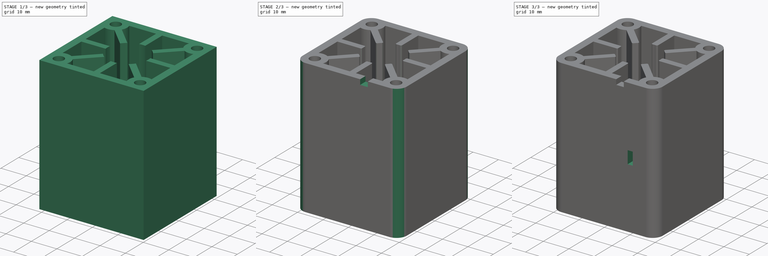
[diagram: build sequence overview — one tinted view per stage of 3, left to right]
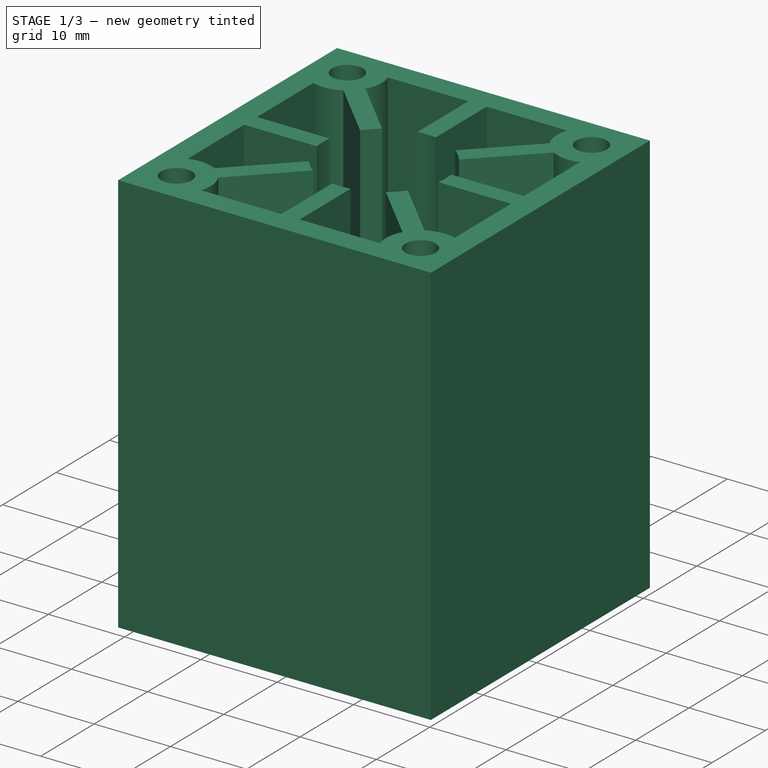
[diagram: stage 1 of 3 — iso view after this stage's code; geometry added in this stage tinted green]
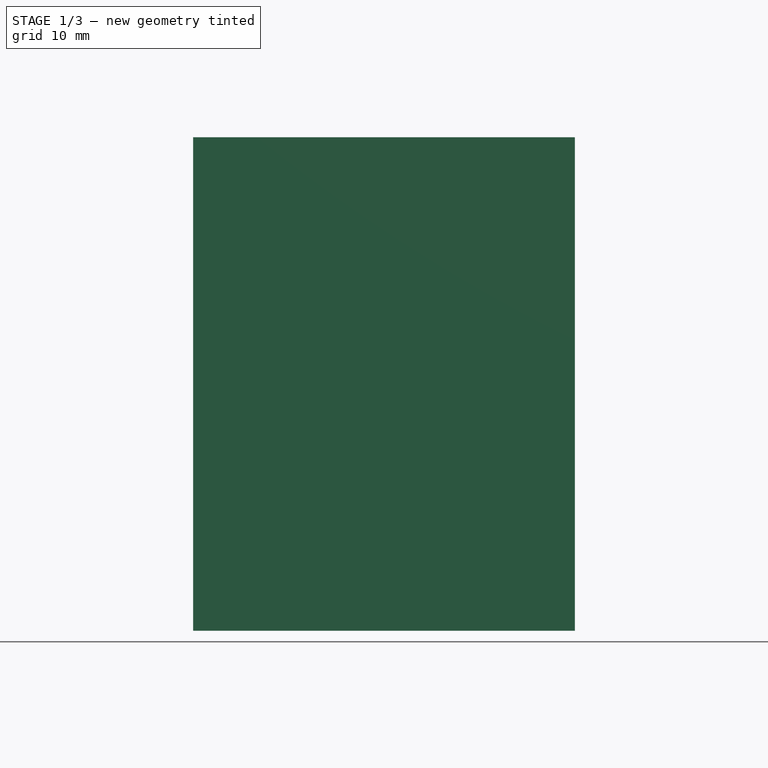
[diagram: stage 1 of 3 — front view after this stage's code; geometry added in this stage tinted green]
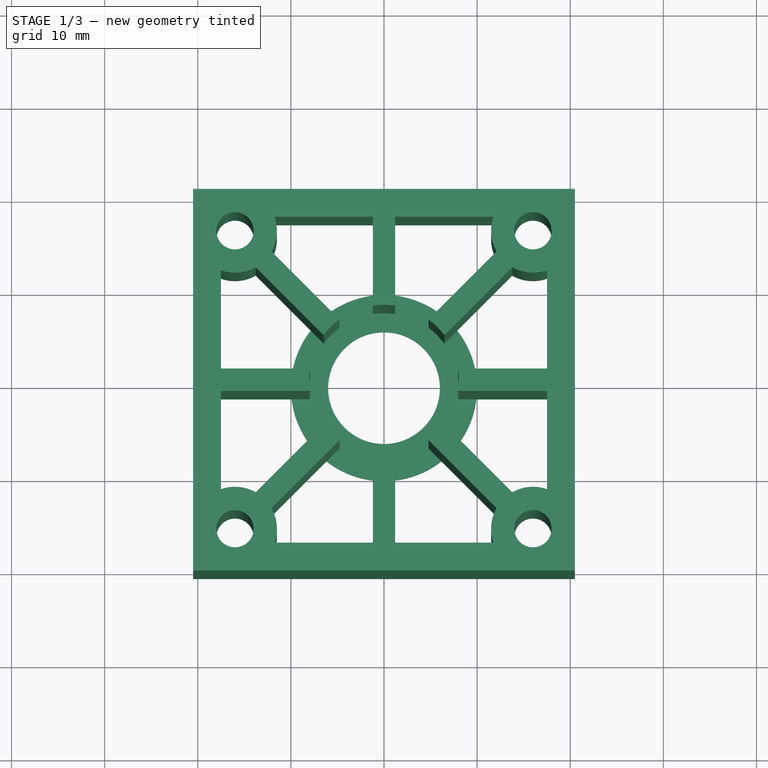
[diagram: stage 1 of 3 — top view after this stage's code; geometry added in this stage tinted green]
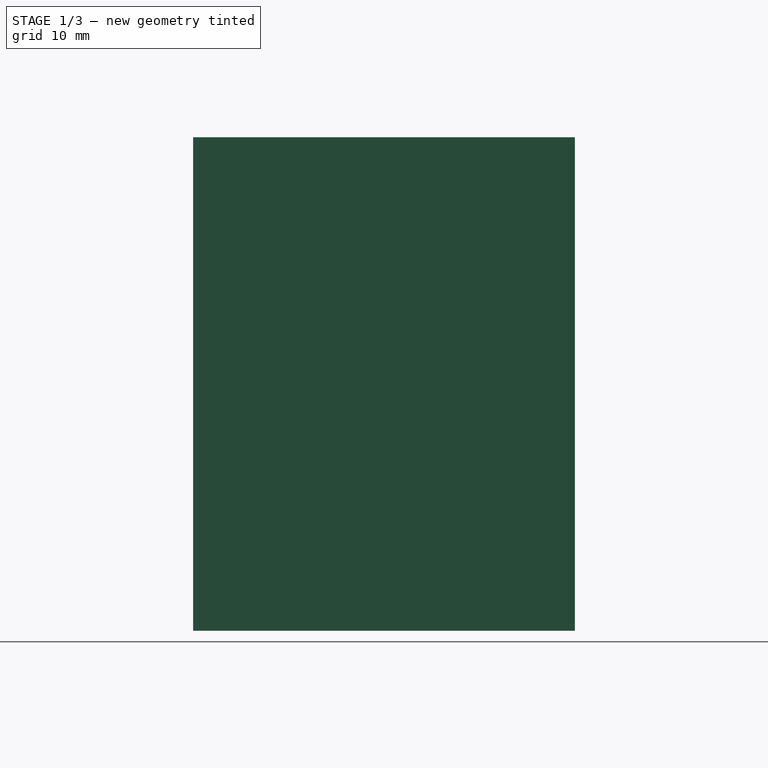
[diagram: stage 1 of 3 — right view after this stage's code; geometry added in this stage tinted green]
FCSTD DOCUMENT  (FreeCAD 0.16R6697 (Git))
Label: Halterung Laserdiode
License: All rights reserved
LicenseURL: http://de.wikipedia.org/wiki/Alle_Rechte_vorbehalten
objects: Drawing::FeatureViewPython×7, Sketcher::SketchObject×5, PartDesign::Pocket×3, PartDesign::Pad×2, PartDesign::Fillet×2, Drawing::FeatureViewPart×2, Drawing::FeaturePage×1
note: 17 computed .brp shape members not serialized (recipe doc carries the construction recipe); baked Part::Feature solids carry a one-line shape summary decoded from their .brp

FEATURE [Sketcher::SketchObject] Sketch
  sketch-geometry (56):
    g0: LineSegment StartX=-20.5 StartY=20.5 StartZ=0 EndX=20.5 EndY=20.5 EndZ=0
    g1: LineSegment StartX=20.5 StartY=20.5 StartZ=0 EndX=20.5 EndY=-20.5 EndZ=0
    g2: LineSegment StartX=20.5 StartY=-20.5 StartZ=0 EndX=-20.5 EndY=-20.5 EndZ=0
    g3: LineSegment StartX=-20.5 StartY=-20.5 StartZ=0 EndX=-20.5 EndY=20.5 EndZ=0
    g4: LineSegment [constr] StartX=-16 StartY=16 StartZ=0 EndX=16 EndY=16 EndZ=0
    g5: LineSegment [constr] StartX=16 StartY=16 StartZ=0 EndX=16 EndY=-16 EndZ=0
    g6: LineSegment [constr] StartX=16 StartY=-16 StartZ=0 EndX=-16 EndY=-16 EndZ=0
    g7: LineSegment [constr] StartX=-16 StartY=-16 StartZ=0 EndX=-16 EndY=16 EndZ=0
    g8: Circle CenterX=-16 CenterY=16 CenterZ=0 NormalX=0 NormalY=0 NormalZ=1 Radius=2
    g9: Circle CenterX=16 CenterY=16 CenterZ=0 NormalX=0 NormalY=0 NormalZ=1 Radius=2
    g10: Circle CenterX=-16 CenterY=-16 CenterZ=0 NormalX=0 NormalY=0 NormalZ=1 Radius=2
    g11: Circle CenterX=16 CenterY=-16 CenterZ=0 NormalX=0 NormalY=0 NormalZ=1 Radius=2
    g12: Circle [constr] CenterX=0 CenterY=0 CenterZ=0 NormalX=0 NormalY=0 NormalZ=1 Radius=8.05
    g13: LineSegment StartX=-17.5 StartY=1.2 StartZ=0 EndX=-7.96006 EndY=1.2 EndZ=0
    g14: LineSegment StartX=-17.5 StartY=-1.2 StartZ=0 EndX=-7.96006 EndY=-1.2 EndZ=0
    g15: LineSegment StartX=-1.2 StartY=7.96006 StartZ=0 EndX=-1.2 EndY=17.5 EndZ=0
    g16: LineSegment StartX=1.2 StartY=7.96006 StartZ=0 EndX=1.2 EndY=17.5 EndZ=0
    g17: LineSegment StartX=7.96006 StartY=1.2 StartZ=0 EndX=17.5 EndY=1.2 EndZ=0
    g18: LineSegment StartX=7.96006 StartY=-1.2 StartZ=0 EndX=17.5 EndY=-1.2 EndZ=0
    g19: LineSegment StartX=4.78008 StartY=6.47714 StartZ=0 EndX=12.0847 EndY=13.7818 EndZ=0
    g20: LineSegment StartX=6.47714 StartY=4.78008 StartZ=0 EndX=13.7818 EndY=12.0847 EndZ=0
    g21: LineSegment StartX=6.47714 StartY=-4.78008 StartZ=0 EndX=13.7818 EndY=-12.0847 EndZ=0
    g22: LineSegment StartX=4.78008 StartY=-6.47714 StartZ=0 EndX=12.0847 EndY=-13.7818 EndZ=0
    g23: LineSegment StartX=1.2 StartY=-7.96006 StartZ=0 EndX=1.2 EndY=-17.5 EndZ=0
    g24: LineSegment StartX=-1.2 StartY=-7.96006 StartZ=0 EndX=-1.2 EndY=-17.5 EndZ=0
    g25: LineSegment StartX=-4.78008 StartY=-6.47714 StartZ=0 EndX=-12.0847 EndY=-13.7818 EndZ=0
    g26: LineSegment StartX=-6.47714 StartY=-4.78008 StartZ=0 EndX=-13.7818 EndY=-12.0847 EndZ=0
    g27: LineSegment StartX=-4.78008 StartY=6.47714 StartZ=0 EndX=-12.0847 EndY=13.7818 EndZ=0
    g28: LineSegment StartX=-6.47714 StartY=4.78008 StartZ=0 EndX=-13.7818 EndY=12.0847 EndZ=0
    g29: LineSegment [constr] StartX=-16 StartY=16 StartZ=0 EndX=16 EndY=-16 EndZ=0
    g30: LineSegment [constr] StartX=16 StartY=16 StartZ=0 EndX=-16 EndY=-16 EndZ=0
    g31: ArcOfCircle CenterX=-16 CenterY=-16 CenterZ=0 NormalX=0 NormalY=0 NormalZ=1 Radius=4.5 StartAngle=1.05533 EndAngle=1.91063
    g32: LineSegment StartX=-17.5 StartY=-1.2 StartZ=0 EndX=-17.5 EndY=-11.7574 EndZ=0
    g33: Circle [constr] CenterX=-16 CenterY=-16 CenterZ=0 NormalX=0 NormalY=0 NormalZ=1 Radius=4.5
    g34: ArcOfCircle CenterX=-16 CenterY=-16 CenterZ=0 NormalX=0 NormalY=0 NormalZ=1 Radius=4.5 StartAngle=5.94335 EndAngle=6.79865
    g35: LineSegment StartX=-11.7574 StartY=-17.5 StartZ=0 EndX=-1.2 EndY=-17.5 EndZ=0
    g36: ArcOfCircle CenterX=16 CenterY=-16 CenterZ=0 NormalX=0 NormalY=0 NormalZ=1 Radius=4.5 StartAngle=2.62613 EndAngle=3.48143
    g37: LineSegment StartX=1.2 StartY=-17.5 StartZ=0 EndX=11.7574 EndY=-17.5 EndZ=0
    g38: ArcOfCircle CenterX=16 CenterY=-16 CenterZ=0 NormalX=0 NormalY=0 NormalZ=1 Radius=4.5 StartAngle=1.23096 EndAngle=2.08626
    g39: LineSegment StartX=17.5 StartY=-1.2 StartZ=0 EndX=17.5 EndY=-11.7574 EndZ=0
    g40: LineSegment StartX=17.5 StartY=1.2 StartZ=0 EndX=17.5 EndY=11.7574 EndZ=0
    g41: LineSegment StartX=-17.5 StartY=1.2 StartZ=0 EndX=-17.5 EndY=11.7574 EndZ=0
    g42: LineSegment StartX=-11.7574 StartY=17.5 StartZ=0 EndX=-1.2 EndY=17.5 EndZ=0
    g43: LineSegment StartX=1.2 StartY=17.5 StartZ=0 EndX=11.7574 EndY=17.5 EndZ=0
    g44: ArcOfCircle CenterX=16 CenterY=16 CenterZ=0 NormalX=0 NormalY=0 NormalZ=1 Radius=4.5 StartAngle=4.19692 EndAngle=5.05223
    g45: ArcOfCircle CenterX=16 CenterY=16 CenterZ=0 NormalX=0 NormalY=0 NormalZ=1 Radius=4.5 StartAngle=2.80176 EndAngle=3.65706
    g46: ArcOfCircle CenterX=-16 CenterY=16 CenterZ=0 NormalX=0 NormalY=0 NormalZ=1 Radius=4.5 StartAngle=5.76772 EndAngle=6.62302
    g47: ArcOfCircle CenterX=-16 CenterY=16 CenterZ=0 NormalX=0 NormalY=0 NormalZ=1 Radius=4.5 StartAngle=4.37255 EndAngle=5.22785
    g48: ArcOfCircle CenterX=0 CenterY=0 CenterZ=0 NormalX=0 NormalY=0 NormalZ=1 Radius=8.05 StartAngle=2.99197 EndAngle=3.29122
    g49: ArcOfCircle CenterX=0 CenterY=0 CenterZ=0 NormalX=0 NormalY=0 NormalZ=1 Radius=8.05 StartAngle=2.20657 EndAngle=2.50582
    g50: ArcOfCircle CenterX=0 CenterY=0 CenterZ=0 NormalX=0 NormalY=0 NormalZ=1 Radius=8.05 StartAngle=1.42117 EndAngle=1.72042
    g51: ArcOfCircle CenterX=0 CenterY=0 CenterZ=0 NormalX=0 NormalY=0 NormalZ=1 Radius=8.05 StartAngle=0.635772 EndAngle=0.935024
    g52: ArcOfCircle CenterX=0 CenterY=0 CenterZ=0 NormalX=0 NormalY=0 NormalZ=1 Radius=8.05 StartAngle=6.13356 EndAngle=6.43281
    g53: ArcOfCircle CenterX=0 CenterY=0 CenterZ=0 NormalX=0 NormalY=0 NormalZ=1 Radius=8.05 StartAngle=5.34816 EndAngle=5.64741
    g54: ArcOfCircle CenterX=0 CenterY=0 CenterZ=0 NormalX=0 NormalY=0 NormalZ=1 Radius=8.05 StartAngle=4.56276 EndAngle=4.86201
    g55: ArcOfCircle CenterX=0 CenterY=0 CenterZ=0 NormalX=0 NormalY=0 NormalZ=1 Radius=8.05 StartAngle=3.77736 EndAngle=4.07662
  constraints (163):
    c: Coincident(g0,g1)
    c: Coincident(g1,g2)
    c: Coincident(g2,g3)
    c: Coincident(g3,g0)
    c: Horizontal(g0)
    c: Horizontal(g2)
    c: Vertical(g1)
    c: Vertical(g3)
    c: Equal(g3,g2)
    c: Symmetric(g0,g2,g-1)
    c: Symmetric(g0,g0,g-2)
    c: DistanceX(g2,g2) = 41
    c: Coincident(g4,g5)
    c: Coincident(g5,g6)
    c: Coincident(g6,g7)
    c: Coincident(g7,g4)
    c: Horizontal(g4)
    c: Vertical(g7)
    c: DistanceX(g6,g6) = 32
    c: Equal(g7,g4)
    c: Symmetric(g6,g5,g-2)
    c: Symmetric(g5,g4,g-1)
    c: Coincident(g8,g4)
    c: Coincident(g9,g4)
    c: Coincident(g10,g6)
    c: Coincident(g11,g5)
    c: Radius(g10) = 2
    c: Equal(g10,g8)
    c: Equal(g10,g9)
    c: Equal(g10,g11)
    c: Coincident(g12,g-1)
    c: Radius(g12) = 8.05  'Laserdiode_Housing'
    c: Horizontal(g14)  'Constraint33'
    c: PointOnObject(g13,g12)
    c: PointOnObject(g15,g12)
    c: Vertical(g15)
    c: PointOnObject(g16,g12)
    c: PointOnObject(g17,g12)
    c: Horizontal(g17)
    c: PointOnObject(g18,g12)
    c: Horizontal(g18)
    c: PointOnObject(g19,g12)
    c: PointOnObject(g20,g12)
    c: PointOnObject(g21,g12)
    c: PointOnObject(g22,g12)
    c: Vertical(g23)
    c: PointOnObject(g24,g12)
    c: Vertical(g24)
    c: PointOnObject(g25,g12)
    c: PointOnObject(g26,g12)
    c: PointOnObject(g28,g12)
    c: PointOnObject(g27,g12)
    c: Parallel(g28,g27)
    c: Parallel(g27,g22)
    c: Parallel(g22,g21)
    c: Parallel(g26,g25)
    c: Parallel(g25,g19)
    c: Parallel(g19,g20)
    c: Vertical(g16)
    c: Coincident(g29,g4)
    c: Coincident(g29,g5)
    c: Coincident(g30,g4)
    c: Coincident(g30,g6)
    c: Symmetric(g27,g28,g29)
    c: PointOnObject(g22,g28)
    c: PointOnObject(g21,g27)
    c: Symmetric(g19,g20,g30)
    c: Coincident(g31,g6)
    c: Vertical(g32)
    c: Coincident(g31,g32)
    c: Coincident(g14,g32)
    c: DistanceX(g2,g31) = 3
    c: Symmetric(g26,g25,g30)
    c: Coincident(g31,g26)
    c: Coincident(g33,g6)
    c: Tangent(g33,g2)
    c: PointOnObject(g31,g33)
    c: Coincident(g34,g6)
    c: Coincident(g35,g34)
    c: Horizontal(g35)
    c: Coincident(g24,g35)
    c: Coincident(g25,g34)
    c: Distance(g26,g25) = 2.4
    c: DistanceX(g24,g23) = 2.4
    c: Coincident(g36,g5)
    c: Coincident(g36,g22)
    c: Horizontal(g37)
    c: Coincident(g36,g37)
    c: Coincident(g23,g37)
    c: Equal(g33,g36)
    c: PointOnObject(g23,g12)
    c: PointOnObject(g23,g35)
    c: DistanceY(g2,g34) = 3
    c: Coincident(g38,g5)
    c: Coincident(g21,g38)
    c: Equal(g38,g36)
    c: Coincident(g39,g38)
    c: Vertical(g39)
    c: Vertical(g40)
    c: Vertical(g41)
    c: Coincident(g42,g15)
    c: Horizontal(g42)
    c: Coincident(g43,g16)
    c: Horizontal(g43)
    c: Coincident(g44,g4)
    c: Coincident(g44,g40)
    c: Coincident(g45,g4)
    c: Coincident(g46,g4)
    c: Coincident(g46,g27)
    c: Coincident(g47,g4)
    c: Coincident(g47,g28)
    c: Equal(g47,g46)
    c: Equal(g46,g45)
    c: Equal(g45,g44)
    c: Equal(g44,g38)
    c: Coincident(g45,g19)
    c: Coincident(g20,g44)
    c: Parallel(g20,g30)
    c: PointOnObject(g20,g25)
    c: Coincident(g43,g45)
    c: DistanceY(g43,g0) = 3
    c: PointOnObject(g16,g42)
    c: Coincident(g42,g46)
    c: Parallel(g27,g29)
    c: Coincident(g41,g47)
    c: PointOnObject(g41,g32)
    c: Coincident(g13,g41)
    c: Horizontal(g13)
    c: Coincident(g17,g40)
    c: Coincident(g18,g39)
    c: Symmetric(g24,g23,g-2)
    c: Symmetric(g16,g15,g-2)
    c: PointOnObject(g23,g16)
    c: Distance(g22,g21) = 2.4
    c: PointOnObject(g14,g18)
    c: Symmetric(g13,g14,g-1)
    c: DistanceY(g18,g17) = 2.4
    c: Symmetric(g17,g18,g-1)
    c: DistanceX(g38,g1) = 3
    c: Coincident(g48,g-1)
    c: Coincident(g49,g-1)
    c: Coincident(g50,g-1)
    c: Coincident(g51,g-1)
    c: Coincident(g52,g-1)
    c: Coincident(g53,g-1)
    c: Coincident(g54,g-1)
    c: Coincident(g55,g-1)
    c: Coincident(g14,g48)
    c: Coincident(g13,g48)
    c: Coincident(g28,g49)
    c: Coincident(g27,g49)
    c: Coincident(g15,g50)
    c: Coincident(g16,g50)
    c: Coincident(g19,g51)
    c: Coincident(g20,g51)
    c: Coincident(g17,g52)
    c: Coincident(g18,g52)
    c: Coincident(g21,g53)
    c: Coincident(g22,g53)
    c: Coincident(g23,g54)
    c: Coincident(g24,g54)
    c: Coincident(g25,g55)
    c: Coincident(g26,g55)
FEATURE [PartDesign::Pad] Pad
  Length = 53
  Length2 = 100
  Sketch = -> Sketch
  Type = 0
FEATURE [Sketcher::SketchObject] Sketch001
  Placement = pos=(0,0,0) rot=(1,0,0;3.14159rad)
  Support = -> Pad [Face49]
  sketch-geometry (2):
    g0: Circle CenterX=0 CenterY=0 CenterZ=0 NormalX=0 NormalY=0 NormalZ=1 Radius=6
    g1: Circle CenterX=0 CenterY=0 CenterZ=0 NormalX=0 NormalY=0 NormalZ=1 Radius=10
  constraints (4):
    c: Coincident(g0,g-1)
    c: Coincident(g1,g-1)
    c: Radius(g0) = 6
    c: Radius(g1) = 10
FEATURE [PartDesign::Pad] Pad001
  Length = 1.2
  Length2 = 100
  Reversed = true
  Sketch = -> Sketch001
  Type = 0
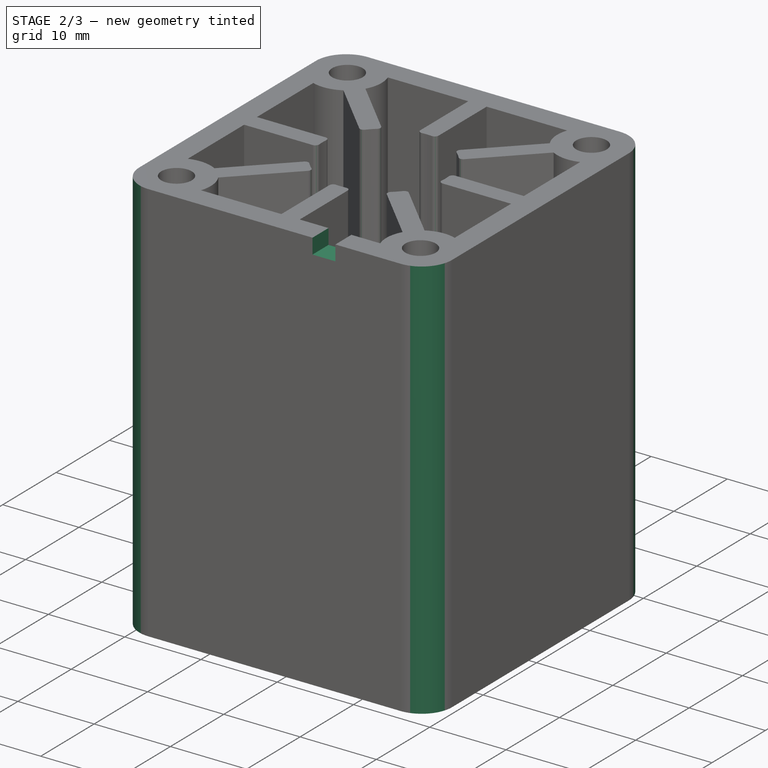
[diagram: stage 2 of 3 — iso view after this stage's code; geometry added in this stage tinted green]
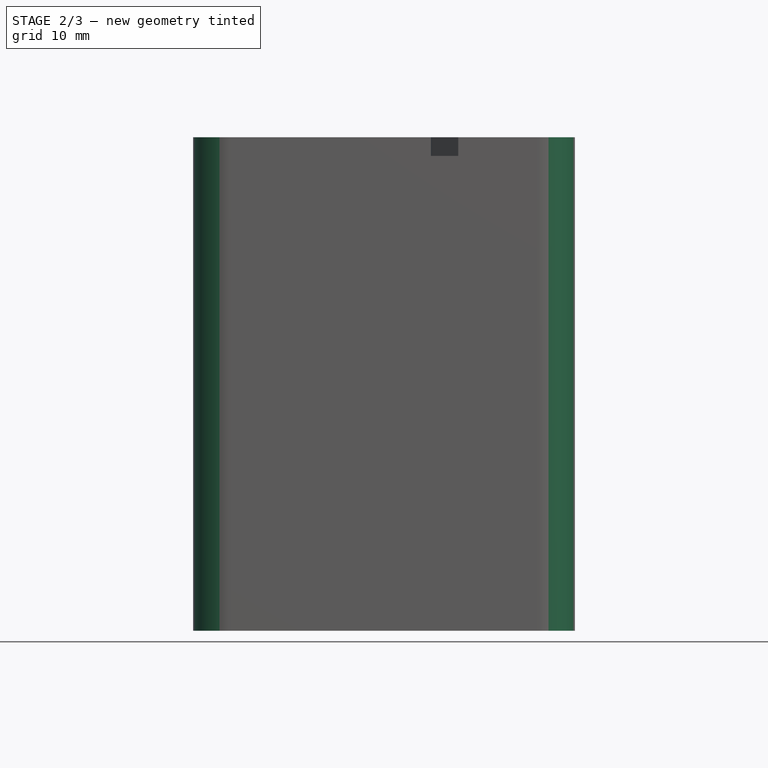
[diagram: stage 2 of 3 — front view after this stage's code; geometry added in this stage tinted green]
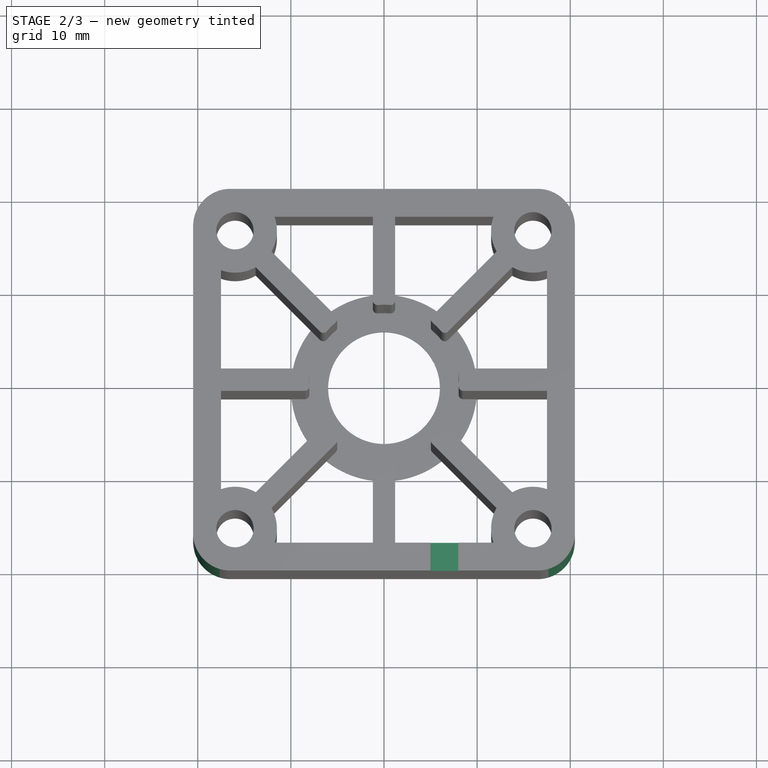
[diagram: stage 2 of 3 — top view after this stage's code; geometry added in this stage tinted green]
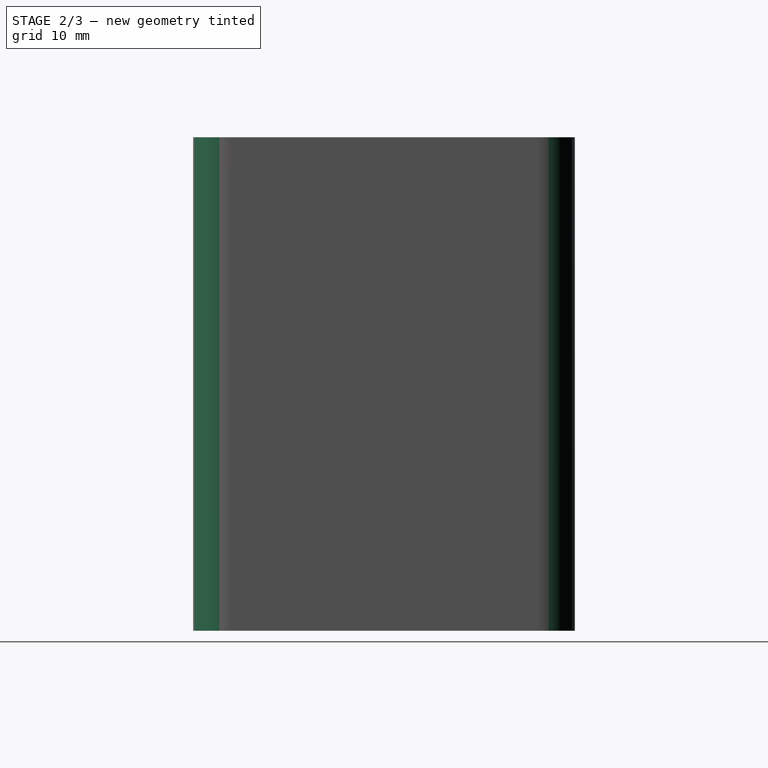
[diagram: stage 2 of 3 — right view after this stage's code; geometry added in this stage tinted green]
FEATURE [PartDesign::Fillet] Fillet
  Base = -> Pad001 [Edge198,Edge191,Edge186,Edge179,Edge174,Edge167,Edge107,Edge113,Edge119,Edge126,Edge131,Edge138,Edge143,Edge150,Edge155,Edge162]
  Radius = 0.5
FEATURE [PartDesign::Fillet] Fillet001
  Base = -> Fillet [Edge210,Edge214,Edge209,Edge212]
  Radius = 4
FEATURE [Sketcher::SketchObject] Sketch002
  ExternalGeometry = -> [Fillet001]
  Placement = pos=(0,0,53) rot=(0,0,1;0rad)
  Support = -> Fillet001 [Face1]
  sketch-geometry (5):
    g0: LineSegment StartX=4.97868 StartY=-17.5 StartZ=0 EndX=7.97868 EndY=-17.5 EndZ=0
    g1: LineSegment StartX=7.97868 StartY=-17.5 StartZ=0 EndX=7.97868 EndY=-20.5 EndZ=0
    g2: LineSegment StartX=7.97868 StartY=-20.5 StartZ=0 EndX=4.97868 EndY=-20.5 EndZ=0
    g3: LineSegment StartX=4.97868 StartY=-20.5 StartZ=0 EndX=4.97868 EndY=-17.5 EndZ=0
    g4: LineSegment [constr] StartX=6.47868 StartY=-17.5 StartZ=0 EndX=6.47868 EndY=-20.5 EndZ=0
  constraints (15):
    c: Coincident(g0,g1)
    c: Coincident(g1,g2)
    c: Coincident(g2,g3)
    c: Coincident(g3,g0)
    c: Horizontal(g0)
    c: Horizontal(g2)
    c: Vertical(g1)
    c: Vertical(g3)
    c: PointOnObject(g0,g-3)
    c: PointOnObject(g1,g-4)
    c: DistanceX(g2,g1) = 3
    c: PointOnObject(g4,g-3)
    c: PointOnObject(g4,g-4)
    c: Symmetric(g-3,g-3,g4)
    c: Symmetric(g0,g0,g4)
FEATURE [PartDesign::Pocket] Pocket
  Length = 2
  Sketch = -> Sketch002
  Type = 0
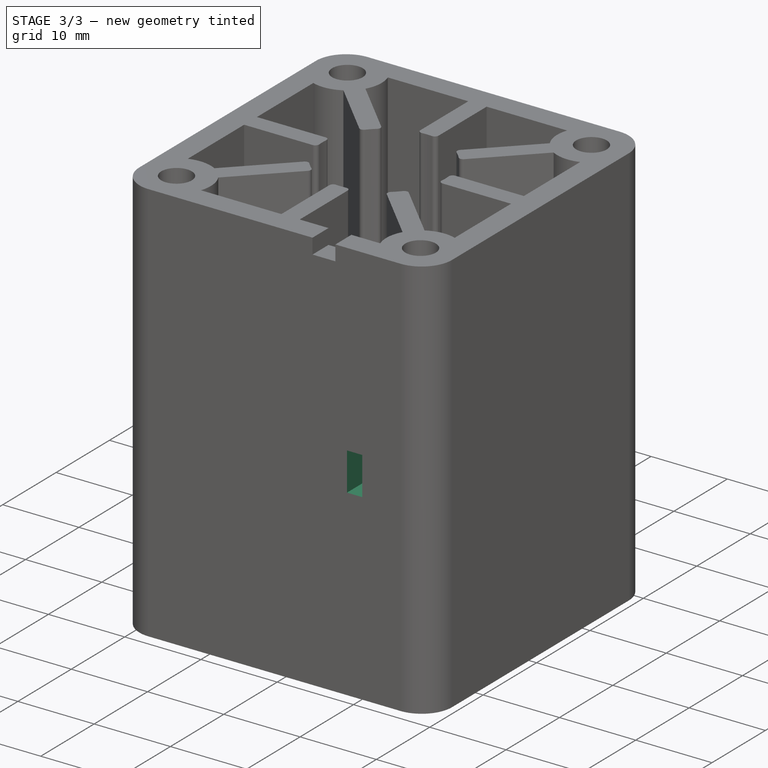
[diagram: stage 3 of 3 — iso view after this stage's code; geometry added in this stage tinted green]
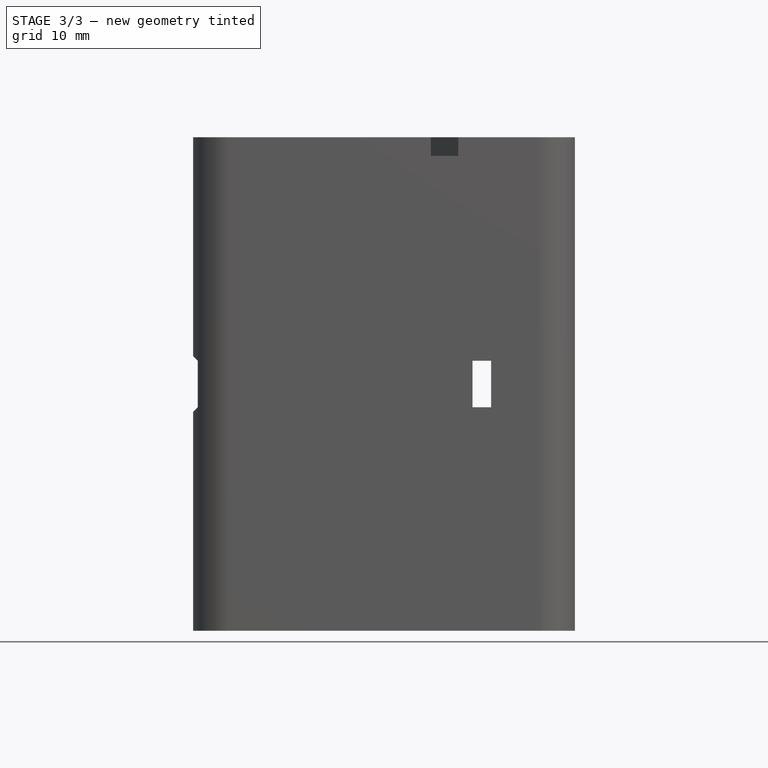
[diagram: stage 3 of 3 — front view after this stage's code; geometry added in this stage tinted green]
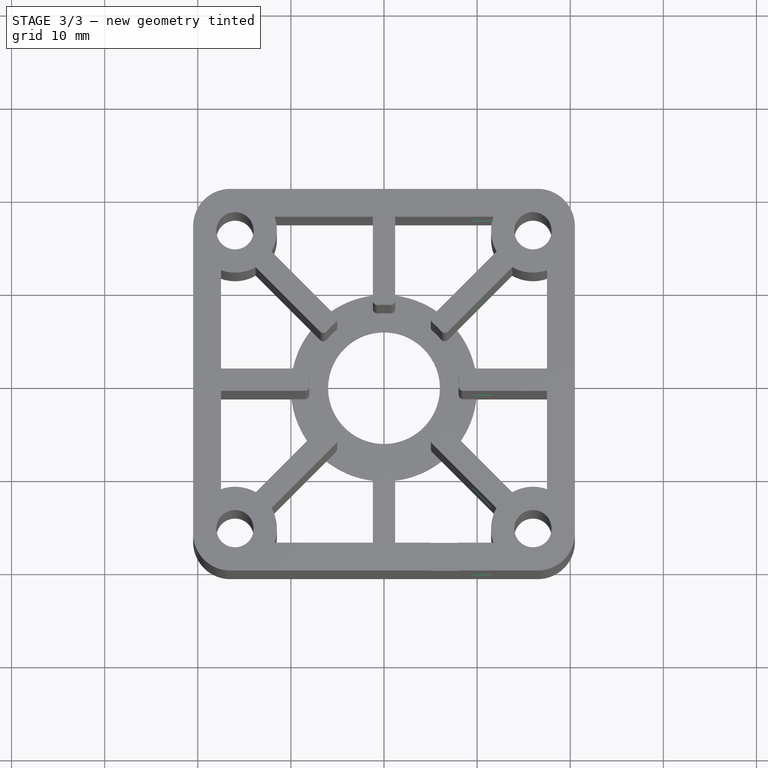
[diagram: stage 3 of 3 — top view after this stage's code; geometry added in this stage tinted green]
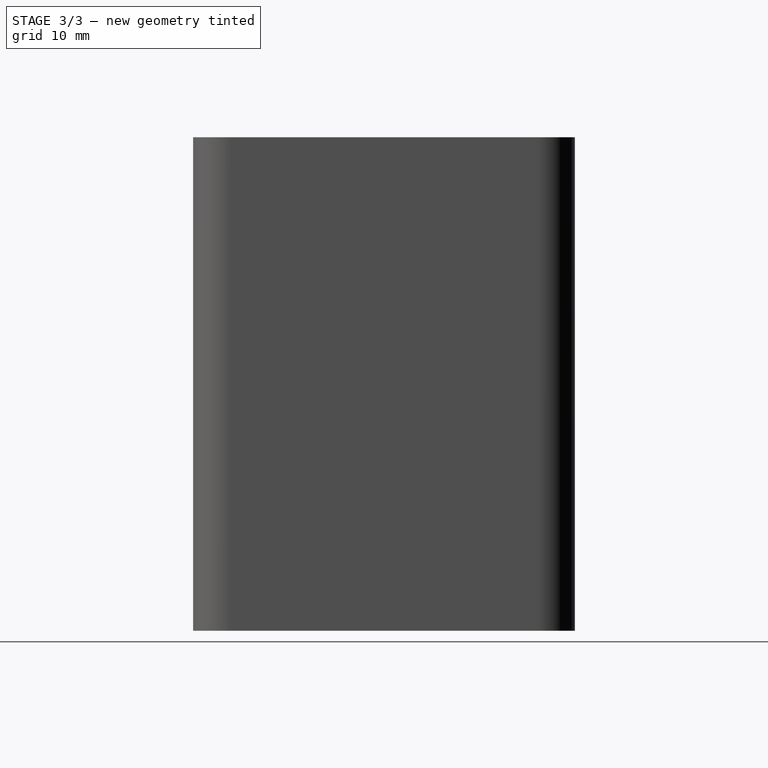
[diagram: stage 3 of 3 — right view after this stage's code; geometry added in this stage tinted green]
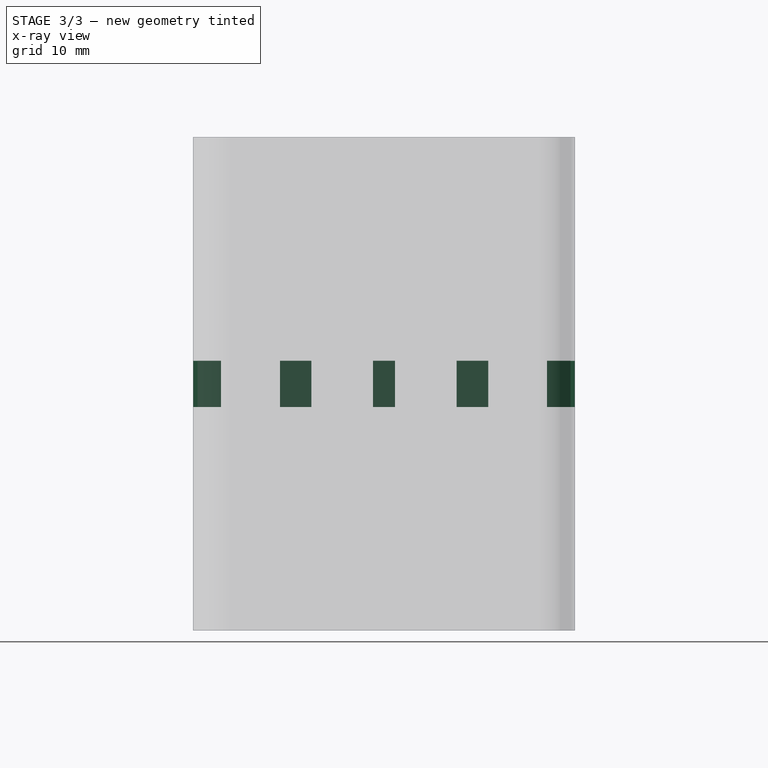
[diagram: stage 3 of 3 — x-ray composite at the right view; earlier geometry ghosted, this stage's added geometry solid]
FEATURE [Sketcher::SketchObject] Sketch003
  ExternalGeometry = -> [Pocket]
  Placement = pos=(0,20.5,0) rot=(0,0.707107,0.707107;3.14159rad)
  Support = -> Pocket [Face4]
  sketch-geometry (6):
    g0: LineSegment [constr] StartX=-10.5 StartY=53 StartZ=0 EndX=-10.5 EndY=0 EndZ=0
    g1: LineSegment [constr] StartX=0 StartY=26.5 StartZ=0 EndX=-16.5 EndY=26.5 EndZ=0
    g2: LineSegment StartX=-11.5 StartY=29 StartZ=0 EndX=-9.5 EndY=29 EndZ=0
    g3: LineSegment StartX=-9.5 StartY=29 StartZ=0 EndX=-9.5 EndY=24 EndZ=0
    g4: LineSegment StartX=-9.5 StartY=24 StartZ=0 EndX=-11.5 EndY=24 EndZ=0
    g5: LineSegment StartX=-11.5 StartY=24 StartZ=0 EndX=-11.5 EndY=29 EndZ=0
  constraints (20):
    c: PointOnObject(g0,g-3)
    c: PointOnObject(g0,g-1)
    c: Vertical(g0)
    c: PointOnObject(g1,g-2)
    c: Horizontal(g1)
    c: Symmetric(g0,g0,g1)
    c: PointOnObject(g1,g-4)
    c: DistanceX(g0,g-1) = 10.5
    c: Coincident(g2,g3)
    c: Coincident(g3,g4)
    c: Coincident(g4,g5)
    c: Coincident(g5,g2)
    c: Horizontal(g2)
    c: Horizontal(g4)
    c: Vertical(g3)
    c: Vertical(g5)
    c: Symmetric(g4,g3,g0)
    c: Symmetric(g3,g2,g1)
    c: DistanceY(g3,g3) = 5
    c: DistanceX(g2,g2) = 2
FEATURE [PartDesign::Pocket] Pocket001
  Length = 0
  Sketch = -> Sketch003
  Type = 1
  UpToFace = -> Pocket [Face38]
FEATURE [Sketcher::SketchObject] Sketch004
  ExternalGeometry = -> [Pocket001]
  Placement = pos=(0,20.5,0) rot=(0,0.707107,0.707107;3.14159rad)
  Support = -> Pocket001 [Face4]
  sketch-geometry (5):
    g0: LineSegment StartX=20 StartY=29 StartZ=0 EndX=22 EndY=31 EndZ=0
    g1: LineSegment StartX=22 StartY=31 StartZ=0 EndX=22 EndY=22 EndZ=0
    g2: LineSegment StartX=22 StartY=22 StartZ=0 EndX=20 EndY=24 EndZ=0
    g3: LineSegment StartX=20 StartY=24 StartZ=0 EndX=20 EndY=29 EndZ=0
    g4: LineSegment [constr] StartX=20 StartY=26.5 StartZ=0 EndX=22 EndY=26.5 EndZ=0
  constraints (15):
    c: Coincident(g0,g1)
    c: Coincident(g1,g2)
    c: Coincident(g2,g3)
    c: Coincident(g3,g0)
    c: Vertical(g1)
    c: Vertical(g3)
    c: DistanceX(g2,g2) = 2
    c: DistanceX(g-1,g2) = 20
    c: PointOnObject(g4,g3)
    c: PointOnObject(g4,g1)
    c: Symmetric(g2,g0,g4)
    c: Symmetric(g1,g0,g4)
    c: PointOnObject(g2,g-3)
    c: DistanceY(g3,g3) = 5
    c: Angle(g2,g3) = 2.35619
FEATURE [PartDesign::Pocket] Pocket002
  Length = 5
  Sketch = -> Sketch004
  Type = 1
FEATURE [Drawing::FeatureViewPart] Ortho  label="Ortho_0_0"
  Direction = (0,0,1)
  HiddenWidth = 0.15
  LineWidth = 0.35
  Rotation = 90
  Scale = 2
  ShowHiddenLines = false
  ShowSmoothLines = false
  Tolerance = 0.05
  ViewResult = <blob: 5096 chars omitted>
  Visible = true
  X = 78.6667
  Y = 105
FEATURE [Drawing::FeatureViewPart] Ortho001  label="Ortho_1_0"
  Direction = (0,1,0)
  HiddenWidth = 0.15
  LineWidth = 0.35
  Rotation = 180
  Scale = 2
  ShowHiddenLines = false
  ShowSmoothLines = false
  Tolerance = 0.05
  ViewResult = <blob: 2506 chars omitted>
  Visible = true
  X = 259.333
  Y = 105
FEATURE [Drawing::FeatureViewPython] dim001  # drawing view (typed FeaturePython)
  Rotation = 0
  ViewResult = <g> \n  <line x1="203.333000" y1="122.000000" x2="203.333000" y2="106.263052" style="stroke:rgb(0,0,255);stroke-width:0.50" />\n<line x1="213.333000" y1="122.000000" x2="213.333000" y2="106.263052" style="stroke:rgb(0,0,255);stroke-width:0.50" />\n<line x1="203.333000" y1="107.263052" x2="213.333000" y2="107.263052" style="stroke:rgb(0,0,255);stroke-width:0.50" /> \n  <polygon points="213.333000,107.263052 216.333000,108.263052 217.333000,107.263052 216.333000,106.263052" style="fill:rgb(0,0,255);stroke:rgb(0,0,255);stroke-width:0" /><polygon points="203.333000,107.263052 200.333000,106.263052 199.333000,107.263052 200.333000,108.263052" style="fill:rgb(0,0,255);stroke:rgb(0,0,255);stroke-width:0" /> \n  <text x="208.333000" y="105.263052" font-family="inherit" font-size="3.6" fill="rgb(0,0,255)" text-anchor="middle" transform="rotate(0.000000 208.333000,105.263052)" >5</text> </g>
  Visible = true
  X = 0
  Y = 0
  arrowL1 = 3
  arrowL2 = 1
  arrowW = 2
  arrow_scheme = 0
  autoPlaceOffset = 2
  autoPlaceText = true
  click1_x = 207.822
  click1_y = 107.263
  click2_x = 207.822
  click2_y = 107.263
  comma_decimal_place = false
  dimension_line_overshoot = 1
  gap_datum_points = 2
  halfDimension_linear = false
  lineColor = rgb(0,0,255)
  strokeWidth = 0.5
  textFormat_linear = %(value)3.3f
  textRenderer_color = rgb(0,0,255)
  textRenderer_family = inherit
  textRenderer_size = 3.6
  unit_custom_scale = 1
  unit_scheme = 0
FEATURE [Drawing::FeatureViewPython] dim002  # drawing view (typed FeaturePython)
  Rotation = 0
  ViewResult = <g> \n  <line x1="157.333000" y1="147.949600" x2="157.333000" y2="160.218593" style="stroke:rgb(0,0,255);stroke-width:0.50" />\n<line x1="203.333000" y1="130.000000" x2="203.333000" y2="160.218593" style="stroke:rgb(0,0,255);stroke-width:0.50" />\n<line x1="157.333000" y1="159.218593" x2="203.333000" y2="159.218593" style="stroke:rgb(0,0,255);stroke-width:0.50" /> \n  <polygon points="203.333000,159.218593 200.333000,158.218593 199.333000,159.218593 200.333000,160.218593" style="fill:rgb(0,0,255);stroke:rgb(0,0,255);stroke-width:0" /><polygon points="157.333000,159.218593 160.333000,160.218593 161.333000,159.218593 160.333000,158.218593" style="fill:rgb(0,0,255);stroke:rgb(0,0,255);stroke-width:0" /> \n  <text x="180.333000" y="157.218593" font-family="inherit" font-size="3.6" fill="rgb(0,0,255)" text-anchor="middle" transform="rotate(0.000000 180.333000,157.218593)" >23</text> </g>
  Visible = true
  X = 0
  Y = 0
  arrowL1 = 3
  arrowL2 = 1
  arrowW = 2
  arrow_scheme = 0
  autoPlaceOffset = 2
  autoPlaceText = true
  click1_x = 195.811
  click1_y = 159.219
  click2_x = 195.811
  click2_y = 159.219
  comma_decimal_place = false
  dimension_line_overshoot = 1
  gap_datum_points = 2
  halfDimension_linear = false
  lineColor = rgb(0,0,255)
  strokeWidth = 0.5
  textFormat_linear = %(value)3.3f
  textRenderer_color = rgb(0,0,255)
  textRenderer_family = inherit
  textRenderer_size = 3.6
  unit_custom_scale = 1
  unit_scheme = 0
FEATURE [Drawing::FeatureViewPython] dim003  # drawing view (typed FeaturePython)
  Rotation = 0
  ViewResult = <g> \n  <line x1="213.333000" y1="130.000000" x2="213.333000" y2="160.218593" style="stroke:rgb(0,0,255);stroke-width:0.50" />\n<line x1="259.333000" y1="147.799400" x2="259.333000" y2="160.218593" style="stroke:rgb(0,0,255);stroke-width:0.50" />\n<line x1="213.333000" y1="159.218593" x2="259.333000" y2="159.218593" style="stroke:rgb(0,0,255);stroke-width:0.50" /> \n  <polygon points="259.333000,159.218593 256.333000,158.218593 255.333000,159.218593 256.333000,160.218593" style="fill:rgb(0,0,255);stroke:rgb(0,0,255);stroke-width:0" /><polygon points="213.333000,159.218593 216.333000,160.218593 217.333000,159.218593 216.333000,158.218593" style="fill:rgb(0,0,255);stroke:rgb(0,0,255);stroke-width:0" /> \n  <text x="236.333000" y="157.218593" font-family="inherit" font-size="3.6" fill="rgb(0,0,255)" text-anchor="middle" transform="rotate(0.000000 236.333000,157.218593)" >23</text> </g>
  Visible = true
  X = 0
  Y = 0
  arrowL1 = 3
  arrowL2 = 1
  arrowW = 2
  arrow_scheme = 0
  autoPlaceOffset = 2
  autoPlaceText = true
  click1_x = 254.75
  click1_y = 159.219
  click2_x = 254.75
  click2_y = 159.219
  comma_decimal_place = false
  dimension_line_overshoot = 1
  gap_datum_points = 2
  halfDimension_linear = false
  lineColor = rgb(0,0,255)
  strokeWidth = 0.5
  textFormat_linear = %(value)3.3f
  textRenderer_color = rgb(0,0,255)
  textRenderer_family = inherit
  textRenderer_size = 3.6
  unit_custom_scale = 1
  unit_scheme = 0
FEATURE [Drawing::FeatureViewPython] dim004  # drawing view (typed FeaturePython)
  Rotation = 0
  ViewResult = <g> \n  <line x1="157.333000" y1="62.200600" x2="157.333000" y2="45.648254" style="stroke:rgb(0,0,255);stroke-width:0.50" />\n<line x1="259.333000" y1="62.449000" x2="259.333000" y2="45.648254" style="stroke:rgb(0,0,255);stroke-width:0.50" />\n<line x1="157.333000" y1="46.648254" x2="259.333000" y2="46.648254" style="stroke:rgb(0,0,255);stroke-width:0.50" /> \n  <polygon points="259.333000,46.648254 256.333000,45.648254 255.333000,46.648254 256.333000,47.648254" style="fill:rgb(0,0,255);stroke:rgb(0,0,255);stroke-width:0" /><polygon points="157.333000,46.648254 160.333000,47.648254 161.333000,46.648254 160.333000,45.648254" style="fill:rgb(0,0,255);stroke:rgb(0,0,255);stroke-width:0" /> \n  <text x="208.333000" y="44.648254" font-family="inherit" font-size="3.6" fill="rgb(0,0,255)" text-anchor="middle" transform="rotate(0.000000 208.333000,44.648254)" >51</text> </g>
  Visible = true
  X = 0
  Y = 0
  arrowL1 = 3
  arrowL2 = 1
  arrowW = 2
  arrow_scheme = 0
  autoPlaceOffset = 2
  autoPlaceText = true
  click1_x = 258.66
  click1_y = 46.6483
  click2_x = 258.66
  click2_y = 46.6483
  comma_decimal_place = false
  dimension_line_overshoot = 1
  gap_datum_points = 2
  halfDimension_linear = false
  lineColor = rgb(0,0,255)
  strokeWidth = 0.5
  textFormat_linear = %(value)3.3f
  textRenderer_color = rgb(0,0,255)
  textRenderer_family = inherit
  textRenderer_size = 3.6
  unit_custom_scale = 1
  unit_scheme = 0
FEATURE [Drawing::FeatureViewPython] dim006  # drawing view (typed FeaturePython)
  Rotation = 0
  ViewResult = <g> \n  <line x1="261.333000" y1="146.000000" x2="272.225220" y2="146.000000" style="stroke:rgb(0,0,255);stroke-width:0.50" />\n<line x1="261.333000" y1="64.000000" x2="272.225220" y2="64.000000" style="stroke:rgb(0,0,255);stroke-width:0.50" />\n<line x1="271.225220" y1="146.000000" x2="271.225220" y2="64.000000" style="stroke:rgb(0,0,255);stroke-width:0.50" /> \n  <polygon points="271.225220,64.000000 270.225220,67.000000 271.225220,68.000000 272.225220,67.000000" style="fill:rgb(0,0,255);stroke:rgb(0,0,255);stroke-width:0" /><polygon points="271.225220,146.000000 272.225220,143.000000 271.225220,142.000000 270.225220,143.000000" style="fill:rgb(0,0,255);stroke:rgb(0,0,255);stroke-width:0" /> \n  <text x="269.225220" y="105.000000" font-family="inherit" font-size="3.6" fill="rgb(0,0,255)" text-anchor="middle" transform="rotate(-90.000000 269.225220,105.000000)" >41</text> </g>
  Visible = true
  X = 0
  Y = 0
  arrowL1 = 3
  arrowL2 = 1
  arrowW = 2
  arrow_scheme = 0
  autoPlaceOffset = 2
  autoPlaceText = true
  click1_x = 271.225
  click1_y = 64.4861
  click2_x = 271.225
  click2_y = 64.4861
  comma_decimal_place = false
  dimension_line_overshoot = 1
  gap_datum_points = 2
  halfDimension_linear = false
  lineColor = rgb(0,0,255)
  strokeWidth = 0.5
  textFormat_linear = %(value)3.3f
  textRenderer_color = rgb(0,0,255)
  textRenderer_family = inherit
  textRenderer_size = 3.6
  unit_custom_scale = 1
  unit_scheme = 0
FEATURE [Drawing::FeatureViewPython] dim005  # drawing view (typed FeaturePython)
  Rotation = 0
  ViewResult = <g> \n  <line x1="201.333000" y1="128.000000" x2="150.066671" y2="128.000000" style="stroke:rgb(0,0,255);stroke-width:0.50" />\n<line x1="155.333000" y1="146.000000" x2="150.066671" y2="146.000000" style="stroke:rgb(0,0,255);stroke-width:0.50" />\n<line x1="151.066671" y1="128.000000" x2="151.066671" y2="146.000000" style="stroke:rgb(0,0,255);stroke-width:0.50" /> \n  <polygon points="151.066671,146.000000 152.066671,143.000000 151.066671,142.000000 150.066671,143.000000" style="fill:rgb(0,0,255);stroke:rgb(0,0,255);stroke-width:0" /><polygon points="151.066671,128.000000 150.066671,131.000000 151.066671,132.000000 152.066671,131.000000" style="fill:rgb(0,0,255);stroke:rgb(0,0,255);stroke-width:0" /> \n  <text x="149.066671" y="137.000000" font-family="inherit" font-size="3.6" fill="rgb(0,0,255)" text-anchor="middle" transform="rotate(-90.000000 149.066671,137.000000)" >9</text> </g>
  Visible = true
  X = 0
  Y = 0
  arrowL1 = 3
  arrowL2 = 1
  arrowW = 2
  arrow_scheme = 0
  autoPlaceOffset = 2
  autoPlaceText = true
  click1_x = 151.067
  click1_y = 145.345
  click2_x = 151.067
  click2_y = 145.345
  comma_decimal_place = false
  dimension_line_overshoot = 1
  gap_datum_points = 2
  halfDimension_linear = false
  lineColor = rgb(0,0,255)
  strokeWidth = 0.5
  textFormat_linear = %(value)3.3f
  textRenderer_color = rgb(0,0,255)
  textRenderer_family = inherit
  textRenderer_size = 3.6
  unit_custom_scale = 1
  unit_scheme = 0
FEATURE [Drawing::FeatureViewPython] dim007  # drawing view (typed FeaturePython)
  Rotation = 0
  ViewResult = <g> \n  <line x1="155.333000" y1="146.000000" x2="142.728708" y2="146.000000" style="stroke:rgb(0,0,255);stroke-width:0.50" />\n<line x1="201.333000" y1="124.000000" x2="142.728708" y2="124.000000" style="stroke:rgb(0,0,255);stroke-width:0.50" />\n<line x1="143.728708" y1="146.000000" x2="143.728708" y2="124.000000" style="stroke:rgb(0,0,255);stroke-width:0.50" /> \n  <polygon points="143.728708,124.000000 142.728708,127.000000 143.728708,128.000000 144.728708,127.000000" style="fill:rgb(0,0,255);stroke:rgb(0,0,255);stroke-width:0" /><polygon points="143.728708,146.000000 144.728708,143.000000 143.728708,142.000000 142.728708,143.000000" style="fill:rgb(0,0,255);stroke:rgb(0,0,255);stroke-width:0" /> \n  <text x="141.728708" y="135.000000" font-family="inherit" font-size="3.6" fill="rgb(0,0,255)" text-anchor="middle" transform="rotate(-90.000000 141.728708,135.000000)" >11</text> </g>
  Visible = true
  X = 0
  Y = 0
  arrowL1 = 3
  arrowL2 = 1
  arrowW = 2
  arrow_scheme = 0
  autoPlaceOffset = 2
  autoPlaceText = true
  click1_x = 143.729
  click1_y = 133.989
  click2_x = 143.729
  click2_y = 133.989
  comma_decimal_place = false
  dimension_line_overshoot = 1
  gap_datum_points = 2
  halfDimension_linear = false
  lineColor = rgb(0,0,255)
  strokeWidth = 0.5
  textFormat_linear = %(value)3.3f
  textRenderer_color = rgb(0,0,255)
  textRenderer_family = inherit
  textRenderer_size = 3.6
  unit_custom_scale = 1
  unit_scheme = 0
FEATURE [Drawing::FeaturePage] Page
  Group = -> [Ortho,Ortho001,dim001,dim002,dim003,dim004,dim006,dim005,dim007]
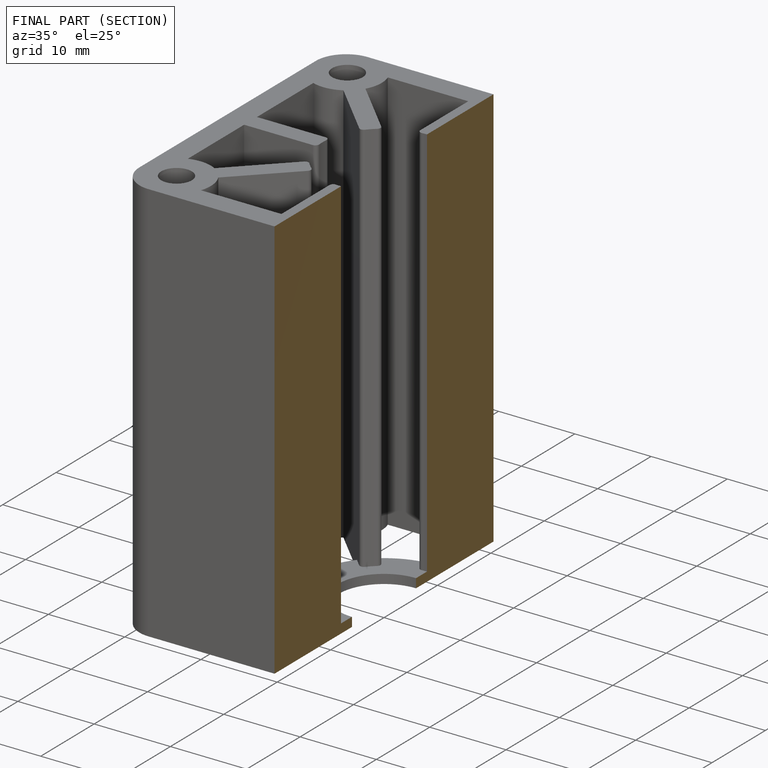
[diagram: finished part — half-section view (interior)]
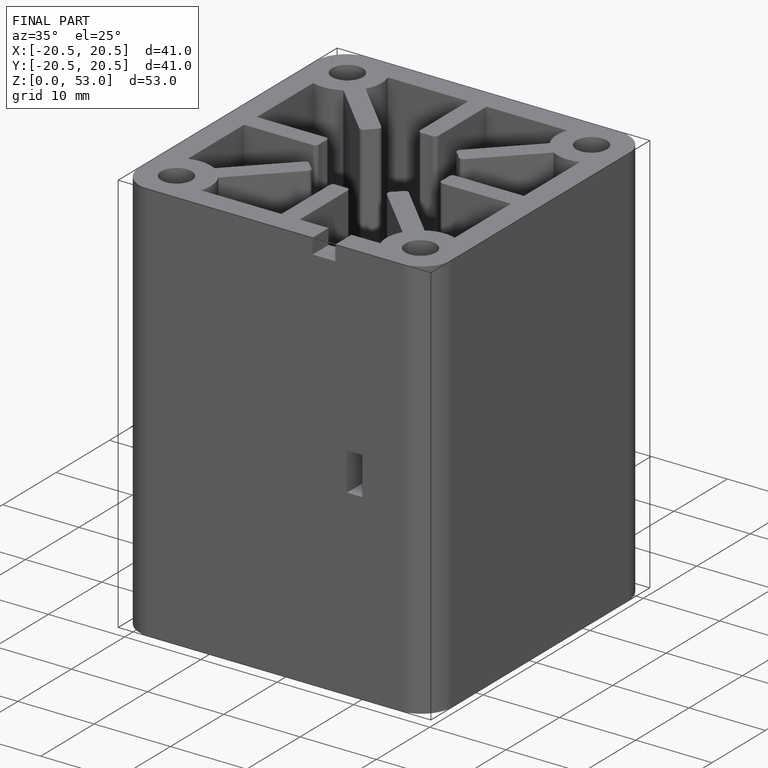
[diagram: finished part — iso view with bounding-box wireframe]
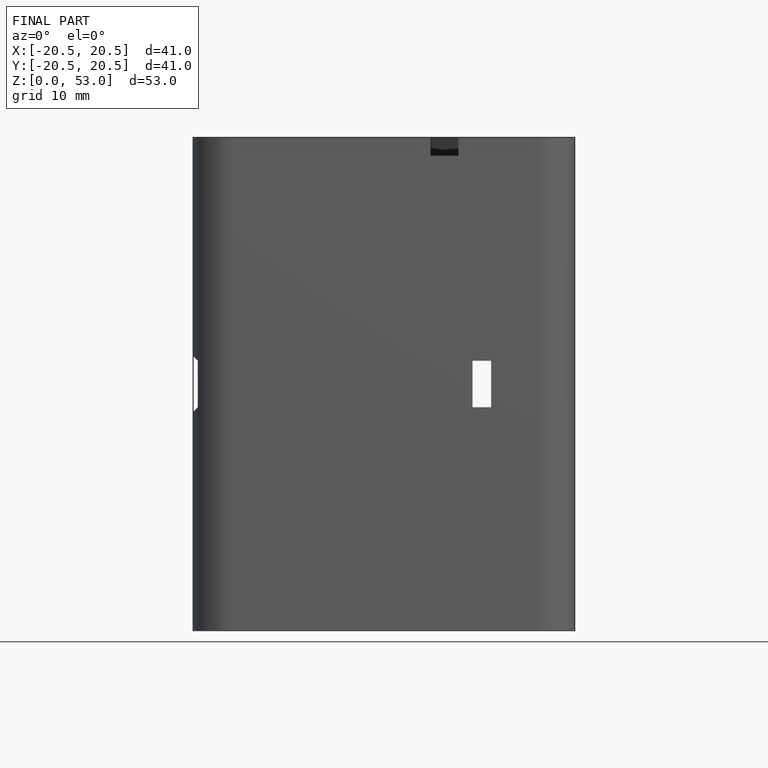
[diagram: finished part — front view with bounding-box wireframe]
